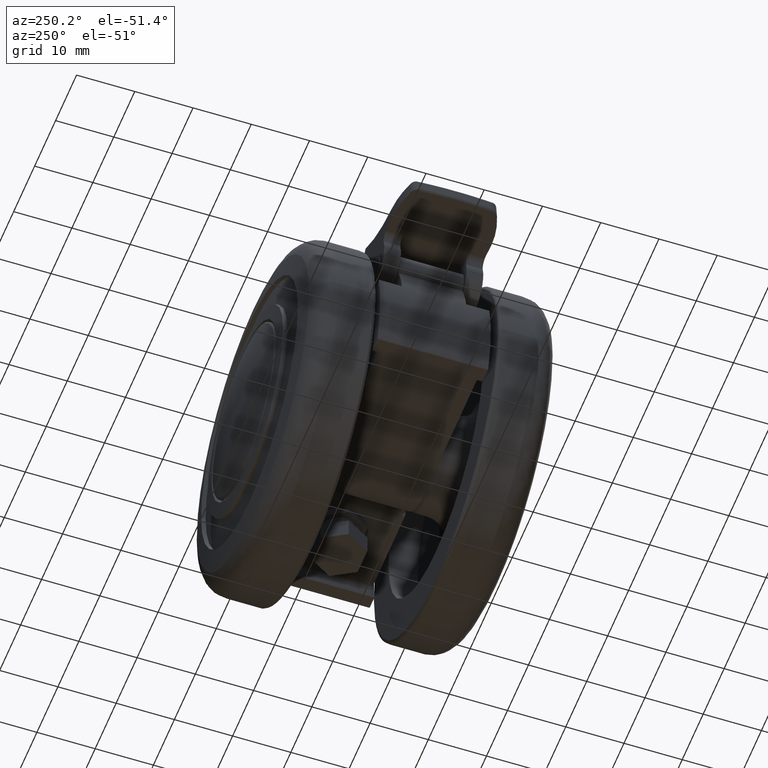
[diagram: clean part render]
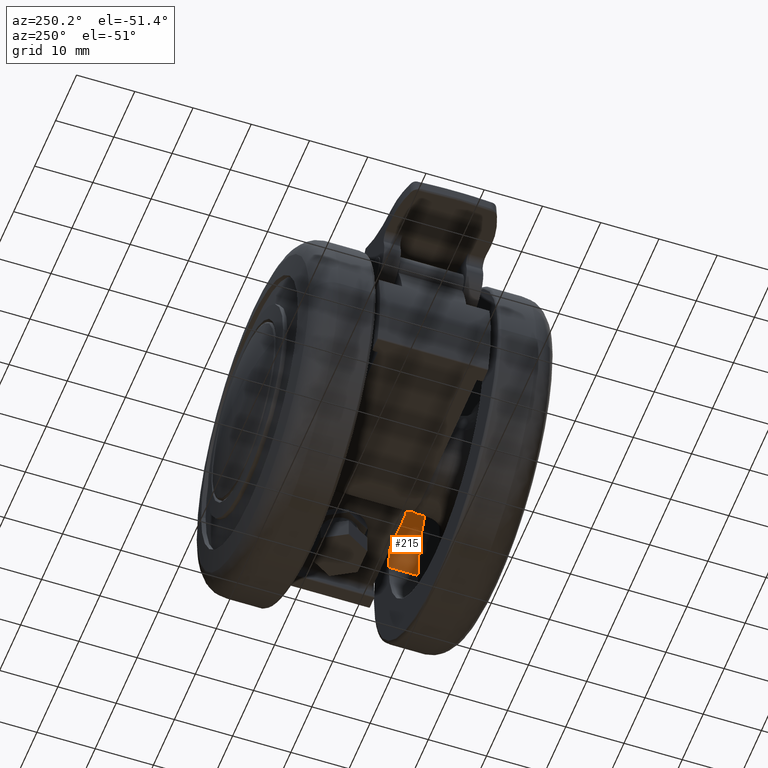
[diagram: same view with one face highlighted and labeled with its STEP entity id]
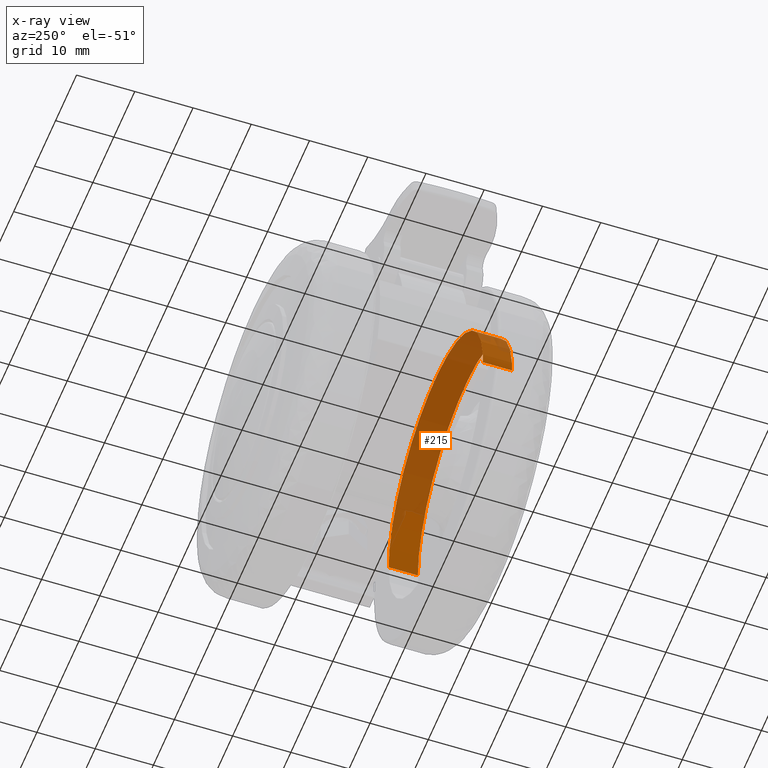
[diagram: x-ray of the same camera — body ghosted, the highlighted face saturated]
A machine part, auxiliary view. The second image highlights one B-rep face of the part: STEP entity #215.
The next image is the same camera in x-ray: the body ghosted, the highlighted face saturated — about 73% of this face is hidden behind the body in this view.
In plain terms, the highlighted cylindrical surface (partial cylindrical patch) has radius 22.5 mm, axis along (-0, 1, -0).
Its self-contained STEP definition (entity closure, byte-faithful):
#215=ADVANCED_FACE('',(#624),#623,.F.);
#623=CYLINDRICAL_SURFACE('',#3404,2.25000000000E+01);
#624=FACE_OUTER_BOUND('',#3405,.T.);
#3401=CARTESIAN_POINT('',(0.00000000000E+00,0.00000000000E+00,4.50000000000E+00));
#3402=DIRECTION('',(-0.00000000000E+00,-0.00000000000E+00,-1.00000000000E+00));
#3403=DIRECTION('',(-1.00000000000E+00,-0.00000000000E+00,-0.00000000000E+00));
#3404=AXIS2_PLACEMENT_3D('',#3401,#3402,#3403);
#3405=EDGE_LOOP('',(#5875,#5876,#5877,#5878,#5879,#5880));
#5875=ORIENTED_EDGE('',*,*,#6962,.T.);
#5876=ORIENTED_EDGE('',*,*,#6964,.T.);
#5877=ORIENTED_EDGE('',*,*,#6997,.T.);
#5878=ORIENTED_EDGE('',*,*,#6955,.T.);
#5879=ORIENTED_EDGE('',*,*,#6957,.T.);
#5880=ORIENTED_EDGE('',*,*,#6998,.F.);
#6955=EDGE_CURVE('',#7639,#7640,#7641,.T.);
#6957=EDGE_CURVE('',#7640,#7647,#7654,.T.);
#6962=EDGE_CURVE('',#7688,#7689,#7690,.T.);
#6964=EDGE_CURVE('',#7689,#7696,#7703,.T.);
#6997=EDGE_CURVE('',#7696,#7639,#7925,.T.);
#6998=EDGE_CURVE('',#7688,#7647,#7931,.T.);
#7639=VERTEX_POINT('',#11418);
#7640=VERTEX_POINT('',#11419);
#7641=CIRCLE('',#11423,2.25000000000E+01);
#7647=VERTEX_POINT('',#11424);
#7654=CIRCLE('',#11432,2.25000000000E+01);
#7688=VERTEX_POINT('',#11453);
#7689=VERTEX_POINT('',#11454);
#7690=CIRCLE('',#11458,2.25000000000E+01);
#7696=VERTEX_POINT('',#11459);
#7703=CIRCLE('',#11467,2.25000000000E+01);
#7925=(BOUNDED_CURVE() B_SPLINE_CURVE(1,(#11622,#11623),.UNSPECIFIED.,.F.,.F.) B_SPLINE_CURVE_WITH_KNOTS((2,2),(8.33333313467E-02,9.16666664002E-01),.UNSPECIFIED.) CURVE() GEOMETRIC_REPRESENTATION_ITEM() RATIONAL_B_SPLINE_CURVE((1.00000000000E+00,1.00000000000E+00)) REPRESENTATION_ITEM('') );
#7931=(BOUNDED_CURVE() B_SPLINE_CURVE(1,(#11624,#11625),.UNSPECIFIED.,.F.,.F.) B_SPLINE_CURVE_WITH_KNOTS((2,2),(8.33333333333E-02,9.16666666667E-01),.UNSPECIFIED.) CURVE() GEOMETRIC_REPRESENTATION_ITEM() RATIONAL_B_SPLINE_CURVE((7.50000000000E-01,7.50000000000E-01)) REPRESENTATION_ITEM('') );
#11418=CARTESIAN_POINT('',(-2.25000000000E+01,-8.03386126938E-08,2.00000000000E+00));
#11419=CARTESIAN_POINT('',(-2.23970834024E+01,2.14957090231E+00,2.00000000000E+00));
#11420=CARTESIAN_POINT('',(0.00000000000E+00,0.00000000000E+00,2.00000000000E+00));
#11421=DIRECTION('',(0.00000000000E+00,0.00000000000E+00,-1.00000000000E+00));
#11422=DIRECTION('',(-9.95425928997E-01,9.55364845470E-02,0.00000000000E+00));
#11423=AXIS2_PLACEMENT_3D('',#11420,#11421,#11422);
#11424=CARTESIAN_POINT('',(2.24999999999E+01,-5.45503734179E-05,2.00000000000E+00));
#11429=CARTESIAN_POINT('',(0.00000000000E+00,0.00000000000E+00,2.00000000000E+00));
#11430=DIRECTION('',(0.00000000000E+00,0.00000000000E+00,-1.00000000000E+00));
#11431=DIRECTION('',(-9.95425928997E-01,9.55364845470E-02,0.00000000000E+00));
#11432=AXIS2_PLACEMENT_3D('',#11429,#11430,#11431);
#11453=CARTESIAN_POINT('',(2.24999999999E+01,-5.45502832697E-05,7.00000000000E+00));
#11454=CARTESIAN_POINT('',(-2.23970834024E+01,2.14957090231E+00,7.00000000000E+00));
#11455=CARTESIAN_POINT('',(0.00000000000E+00,0.00000000000E+00,7.00000000000E+00));
#11456=DIRECTION('',(0.00000000000E+00,0.00000000000E+00,1.00000000000E+00));
#11457=DIRECTION('',(-9.95425928997E-01,9.55364845470E-02,0.00000000000E+00));
#11458=AXIS2_PLACEMENT_3D('',#11455,#11456,#11457);
#11459=CARTESIAN_POINT('',(-2.25000000000E+01,-8.03386128400E-08,7.00000000000E+00));
#11464=CARTESIAN_POINT('',(0.00000000000E+00,0.00000000000E+00,7.00000000000E+00));
#11465=DIRECTION('',(0.00000000000E+00,0.00000000000E+00,1.00000000000E+00));
#11466=DIRECTION('',(-9.95425928997E-01,9.55364845470E-02,0.00000000000E+00));
#11467=AXIS2_PLACEMENT_3D('',#11464,#11465,#11466);
#11622=CARTESIAN_POINT('',(-2.25000000000E+01,0.00000000000E+00,7.00000001192E+00));
#11623=CARTESIAN_POINT('',(-2.25000000000E+01,0.00000000000E+00,2.00000001599E+00));
#11624=CARTESIAN_POINT('',(2.25000000000E+01,0.00000000000E+00,7.00000000000E+00));
#11625=CARTESIAN_POINT('',(2.25000000000E+01,0.00000000000E+00,2.00000000000E+00));